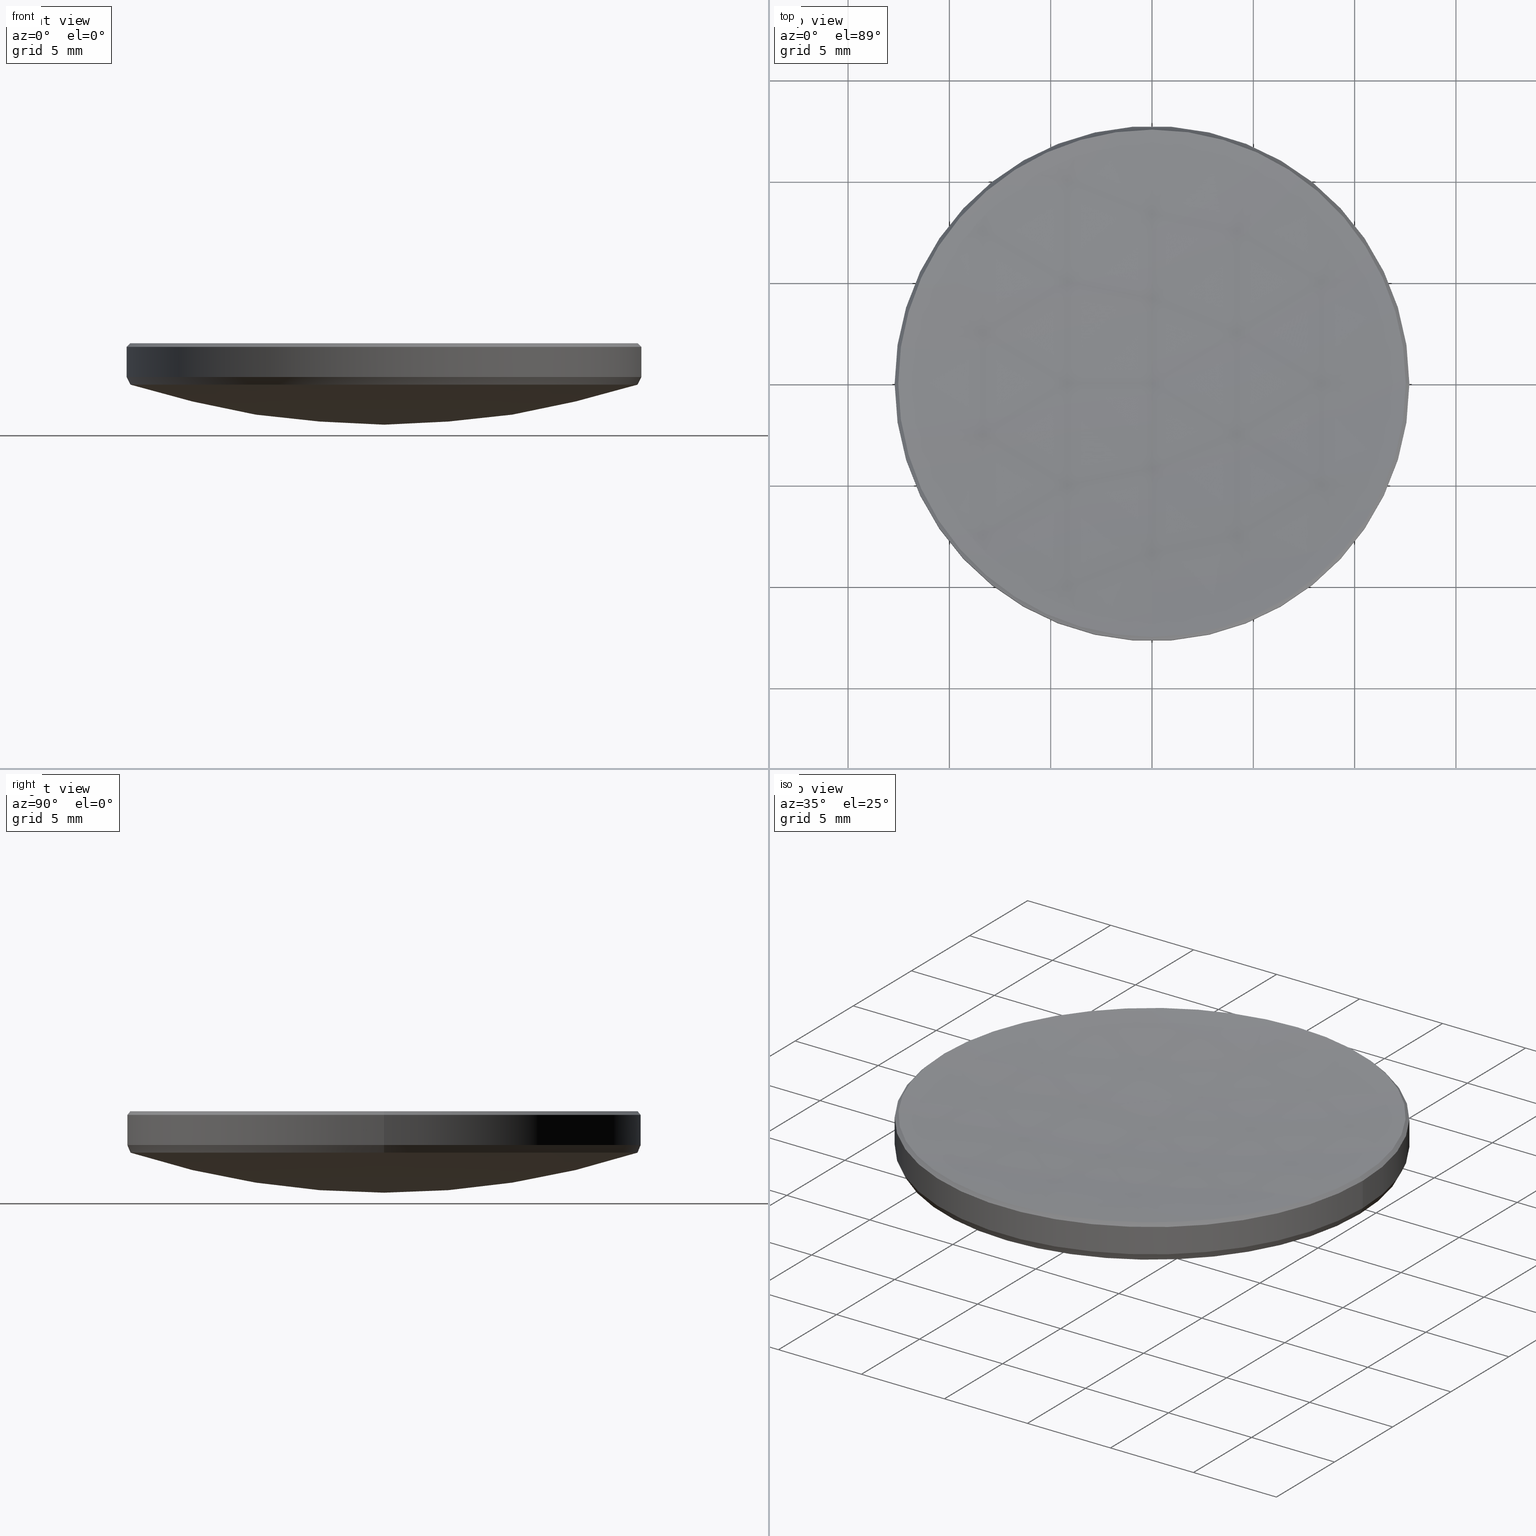
[diagram: canonical four-view strip — front | top / right | iso, engineering-drawing reading convention]
A machine part, canonical four-view strip (front | top / right | iso — engineering-drawing reading convention). The complete STEP part file that produces these views, byte-faithful:
ISO-10303-21;
HEADER;
FILE_DESCRIPTION (( 'STEP AP214' ),
    '1' );
FILE_NAME ('GLM1-025B-125.STEP',
    '2024-08-09T02:13:52',
    ( 'Windows User' ),
    ( 'P R C' ),
    'SwSTEP 2.0',
    'SolidWorks 2022',
    '' );
FILE_SCHEMA (( 'AUTOMOTIVE_DESIGN' ));
ENDSEC;

DATA;
#1 = SURFACE_STYLE_USAGE ( .BOTH. , #280 ) ;
#2 = AXIS2_PLACEMENT_3D ( 'NONE', #307, #180, #20 ) ;
#3 = CARTESIAN_POINT ( 'NONE',  ( 12.69999999999999929, 1.555301434917138433E-15, 5.799999999999999822 ) ) ;
#4 = VERTEX_POINT ( 'NONE', #3 ) ;
#5 = DIRECTION ( 'NONE',  ( 1.000000000000000000, 0.000000000000000000, 0.000000000000000000 ) ) ;
#6 = UNCERTAINTY_MEASURE_WITH_UNIT (LENGTH_MEASURE( 1.000000000000000082E-05 ), #103, 'distance_accuracy_value', 'NONE');
#7 = CARTESIAN_POINT ( 'NONE',  ( 0.000000000000000000, 0.000000000000000000, 42.56254659640620730 ) ) ;
#8 = AXIS2_PLACEMENT_3D ( 'NONE', #7, #35, #263 ) ;
#9 = DIRECTION ( 'NONE',  ( 0.000000000000000000, 1.000000000000000000, 0.000000000000000000 ) ) ;
#10 = DIRECTION ( 'NONE',  ( 1.000000000000000000, 0.000000000000000000, 0.000000000000000000 ) ) ;
#11 = CIRCLE ( 'NONE', #76, 40.59999999999999432 ) ;
#12 = CARTESIAN_POINT ( 'NONE',  ( 0.000000000000000000, 0.000000000000000000, 3.938057364562333351 ) ) ;
#13 = DIRECTION ( 'NONE',  ( 0.000000000000000000, 1.000000000000000000, 0.000000000000000000 ) ) ;
#14 = DIRECTION ( 'NONE',  ( 0.000000000000000000, 0.000000000000000000, -1.000000000000000000 ) ) ;
#15 =( NAMED_UNIT ( * ) PLANE_ANGLE_UNIT ( ) SI_UNIT ( $, .RADIAN. ) );
#16 = CIRCLE ( 'NONE', #255, 12.69999999999999929 ) ;
#17 = EDGE_CURVE ( 'NONE', #289, #114, #11, .T. ) ;
#18 = DIRECTION ( 'NONE',  ( -0.000000000000000000, -0.000000000000000000, 1.000000000000000000 ) ) ;
#19 = ORIENTED_EDGE ( 'NONE', *, *, #234, .T. ) ;
#20 = DIRECTION ( 'NONE',  ( -1.000000000000000000, 0.000000000000000000, 0.000000000000000000 ) ) ;
#21 = VERTEX_POINT ( 'NONE', #182 ) ;
#22 = PRESENTATION_STYLE_ASSIGNMENT (( #46 ) ) ;
#23 = AXIS2_PLACEMENT_3D ( 'NONE', #288, #56, #313 ) ;
#24 = ORIENTED_EDGE ( 'NONE', *, *, #250, .T. ) ;
#25 = DIRECTION ( 'NONE',  ( 0.000000000000000000, 0.000000000000000000, 1.000000000000000000 ) ) ;
#26 = ADVANCED_FACE ( 'NONE', ( #279 ), #209, .F. ) ;
#27 = PRODUCT_DEFINITION_CONTEXT ( 'detailed design', #238, 'design' ) ;
#28 =( GEOMETRIC_REPRESENTATION_CONTEXT ( 3 ) GLOBAL_UNCERTAINTY_ASSIGNED_CONTEXT ( ( #6 ) ) GLOBAL_UNIT_ASSIGNED_CONTEXT ( ( #103, #133, #158 ) ) REPRESENTATION_CONTEXT ( 'NONE', 'WORKASPACE' ) );
#29 = ORIENTED_EDGE ( 'NONE', *, *, #225, .T. ) ;
#30 = ORIENTED_EDGE ( 'NONE', *, *, #79, .F. ) ;
#31 = CARTESIAN_POINT ( 'NONE',  ( 0.000000000000000000, 0.000000000000000000, 42.56254659640620730 ) ) ;
#32 = VERTEX_POINT ( 'NONE', #134 ) ;
#33 = DIRECTION ( 'NONE',  ( 0.000000000000000000, 0.000000000000000000, -1.000000000000000000 ) ) ;
#34 = ORIENTED_EDGE ( 'NONE', *, *, #285, .T. ) ;
#35 = DIRECTION ( 'NONE',  ( -1.000000000000000000, 0.000000000000000000, 0.000000000000000000 ) ) ;
#36 = ADVANCED_FACE ( 'NONE', ( #231 ), #131, .T. ) ;
#37 = AXIS2_PLACEMENT_3D ( 'NONE', #142, #57, #9 ) ;
#38 = COLOUR_RGB ( '',1.000000000000000000, 1.000000000000000000, 1.000000000000000000 ) ;
#39 = ORIENTED_EDGE ( 'NONE', *, *, #152, .T. ) ;
#40 = DIRECTION ( 'NONE',  ( -1.000000000000000000, 0.000000000000000000, 0.000000000000000000 ) ) ;
#41 = DIRECTION ( 'NONE',  ( -0.000000000000000000, -0.000000000000000000, 1.000000000000000000 ) ) ;
#42 = CARTESIAN_POINT ( 'NONE',  ( 12.69999999999999929, 1.555301434917138433E-15, 10.00000000000000000 ) ) ;
#43 = CIRCLE ( 'NONE', #159, 106.9000000000000057 ) ;
#44 = DIRECTION ( 'NONE',  ( 1.000000000000000000, 0.000000000000000000, 0.000000000000000000 ) ) ;
#45 = CARTESIAN_POINT ( 'NONE',  ( 12.69999999999999929, 1.555301434917138433E-15, 4.313967534857077624 ) ) ;
#46 = SURFACE_STYLE_USAGE ( .BOTH. , #219 ) ;
#47 = CYLINDRICAL_SURFACE ( 'NONE', #2, 12.69999999999999929 ) ;
#48 = ADVANCED_FACE ( 'NONE', ( #188 ), #168, .T. ) ;
#49 = DIRECTION ( 'NONE',  ( -0.000000000000000000, -0.000000000000000000, 1.000000000000000000 ) ) ;
#50 = EDGE_CURVE ( 'NONE', #153, #138, #94, .T. ) ;
#51 = STYLED_ITEM ( 'NONE', ( #107 ), #61 ) ;
#52 = DIRECTION ( 'NONE',  ( 0.000000000000000000, 0.000000000000000000, -1.000000000000000000 ) ) ;
#53 = EDGE_LOOP ( 'NONE', ( #260, #294, #299, #67 ) ) ;
#54 = CARTESIAN_POINT ( 'NONE',  ( 0.000000000000000000, 0.000000000000000000, 5.978763596161118521 ) ) ;
#55 = EDGE_CURVE ( 'NONE', #114, #309, #101, .T. ) ;
#56 = DIRECTION ( 'NONE',  ( 0.000000000000000000, 0.000000000000000000, -1.000000000000000000 ) ) ;
#57 = DIRECTION ( 'NONE',  ( -1.000000000000000000, 0.000000000000000000, 0.000000000000000000 ) ) ;
#58 = PRODUCT_DEFINITION_SHAPE ( 'NONE', 'NONE',  #292 ) ;
#59 = ADVANCED_FACE ( 'NONE', ( #258 ), #80, .T. ) ;
#60 = ORIENTED_EDGE ( 'NONE', *, *, #327, .T. ) ;
#61 = ADVANCED_BREP_SHAPE_REPRESENTATION ( 'GLM1-025B-125', ( #178, #267 ), #111 ) ;
#62 = ORIENTED_EDGE ( 'NONE', *, *, #234, .F. ) ;
#63 = CYLINDRICAL_SURFACE ( 'NONE', #246, 12.69999999999999929 ) ;
#64 = VECTOR ( 'NONE', #203, 1000.000000000000000 ) ;
#65 = VECTOR ( 'NONE', #151, 1000.000000000000000 ) ;
#66 = DIRECTION ( 'NONE',  ( -1.000000000000000000, 1.224646799147353207E-16, 0.000000000000000000 ) ) ;
#67 = ORIENTED_EDGE ( 'NONE', *, *, #321, .T. ) ;
#68 = DIRECTION ( 'NONE',  ( -1.000000000000000000, 0.000000000000000000, 0.000000000000000000 ) ) ;
#69 = DIRECTION ( 'NONE',  ( -1.000000000000000000, 0.000000000000000000, 0.000000000000000000 ) ) ;
#70 = VERTEX_POINT ( 'NONE', #140 ) ;
#71 =( GEOMETRIC_REPRESENTATION_CONTEXT ( 3 ) GLOBAL_UNCERTAINTY_ASSIGNED_CONTEXT ( ( #277 ) ) GLOBAL_UNIT_ASSIGNED_CONTEXT ( ( #127, #202, #100 ) ) REPRESENTATION_CONTEXT ( 'NONE', 'WORKASPACE' ) );
#72 = FACE_OUTER_BOUND ( 'NONE', #88, .T. ) ;
#73 = EDGE_CURVE ( 'NONE', #138, #276, #211, .T. ) ;
#74 = ORIENTED_EDGE ( 'NONE', *, *, #109, .T. ) ;
#75 = EDGE_LOOP ( 'NONE', ( #220, #60, #24, #301 ) ) ;
#76 = AXIS2_PLACEMENT_3D ( 'NONE', #181, #227, #137 ) ;
#77 = MECHANICAL_DESIGN_GEOMETRIC_PRESENTATION_REPRESENTATION (  '', ( #51 ), #28 ) ;
#78 = CARTESIAN_POINT ( 'NONE',  ( 0.000000000000000000, 0.000000000000000000, 112.1429225148808655 ) ) ;
#79 = EDGE_CURVE ( 'NONE', #197, #114, #128, .T. ) ;
#80 = SPHERICAL_SURFACE ( 'NONE', #8, 40.59999999999999432 ) ;
#81 = CARTESIAN_POINT ( 'NONE',  ( 0.000000000000000000, 12.52123640383880421, 5.978763596161098093 ) ) ;
#82 = ORIENTED_EDGE ( 'NONE', *, *, #264, .T. ) ;
#83 = FACE_OUTER_BOUND ( 'NONE', #248, .T. ) ;
#84 = ORIENTED_EDGE ( 'NONE', *, *, #250, .F. ) ;
#85 = PRESENTATION_LAYER_ASSIGNMENT (  '', '', ( #316 ) ) ;
#86 = CIRCLE ( 'NONE', #305, 12.51034897911231170 ) ;
#87 = EDGE_CURVE ( 'NONE', #289, #70, #266, .T. ) ;
#88 = EDGE_LOOP ( 'NONE', ( #310, #274, #141, #193 ) ) ;
#89 = CARTESIAN_POINT ( 'NONE',  ( -12.69999999999999929, 0.000000000000000000, 5.799999999999999822 ) ) ;
#90 =( LENGTH_UNIT ( ) NAMED_UNIT ( * ) SI_UNIT ( .MILLI., .METRE. ) );
#91 = EDGE_LOOP ( 'NONE', ( #30, #74, #84, #201, #116 ) ) ;
#92 = ORIENTED_EDGE ( 'NONE', *, *, #285, .F. ) ;
#93 = CARTESIAN_POINT ( 'NONE',  ( -12.51034897911231170, 1.543688659132881617E-15, 3.938057364562333351 ) ) ;
#94 = CIRCLE ( 'NONE', #273, 12.52123640383887704 ) ;
#95 = LINE ( 'NONE', #247, #317 ) ;
#96 = ORIENTED_EDGE ( 'NONE', *, *, #73, .F. ) ;
#97 = LINE ( 'NONE', #275, #64 ) ;
#98 = CARTESIAN_POINT ( 'NONE',  ( 12.52123640383887881, 1.533409208332859768E-15, 5.978763596161118521 ) ) ;
#99 = ORIENTED_EDGE ( 'NONE', *, *, #296, .F. ) ;
#100 =( NAMED_UNIT ( * ) SI_UNIT ( $, .STERADIAN. ) SOLID_ANGLE_UNIT ( ) );
#101 = CIRCLE ( 'NONE', #328, 12.51034897911231170 ) ;
#102 = ADVANCED_FACE ( 'NONE', ( #191 ), #290, .F. ) ;
#103 =( LENGTH_UNIT ( ) NAMED_UNIT ( * ) SI_UNIT ( .MILLI., .METRE. ) );
#104 = DIRECTION ( 'NONE',  ( 1.000000000000000000, 0.000000000000000000, 0.000000000000000000 ) ) ;
#105 = MECHANICAL_DESIGN_GEOMETRIC_PRESENTATION_REPRESENTATION (  '', ( #316 ), #71 ) ;
#106 = SHAPE_DEFINITION_REPRESENTATION ( #58, #61 ) ;
#107 = PRESENTATION_STYLE_ASSIGNMENT (( #1 ) ) ;
#108 = APPLICATION_PROTOCOL_DEFINITION ( 'draft international standard', 'automotive_design', 1998, #238 ) ;
#109 = EDGE_CURVE ( 'NONE', #197, #143, #112, .T. ) ;
#110 = ORIENTED_EDGE ( 'NONE', *, *, #259, .T. ) ;
#111 =( GEOMETRIC_REPRESENTATION_CONTEXT ( 3 ) GLOBAL_UNCERTAINTY_ASSIGNED_CONTEXT ( ( #136 ) ) GLOBAL_UNIT_ASSIGNED_CONTEXT ( ( #90, #15, #123 ) ) REPRESENTATION_CONTEXT ( 'NONE', 'WORKASPACE' ) );
#112 = LINE ( 'NONE', #190, #198 ) ;
#113 = DIRECTION ( 'NONE',  ( 0.000000000000000000, 0.000000000000000000, -1.000000000000000000 ) ) ;
#114 = VERTEX_POINT ( 'NONE', #115 ) ;
#115 = CARTESIAN_POINT ( 'NONE',  ( 0.000000000000000000, 12.51034897911230992, 3.938057364562333351 ) ) ;
#116 = ORIENTED_EDGE ( 'NONE', *, *, #55, .F. ) ;
#117 = CLOSED_SHELL ( 'NONE', ( #48, #36, #102, #59, #173, #145, #206, #26, #169, #125 ) ) ;
#118 = AXIS2_PLACEMENT_3D ( 'NONE', #271, #18, #200 ) ;
#119 = DIRECTION ( 'NONE',  ( 1.000000000000000000, 0.000000000000000000, 0.000000000000000000 ) ) ;
#120 = ORIENTED_EDGE ( 'NONE', *, *, #327, .F. ) ;
#121 = EDGE_CURVE ( 'NONE', #309, #70, #139, .T. ) ;
#122 = AXIS2_PLACEMENT_3D ( 'NONE', #322, #199, #297 ) ;
#123 =( NAMED_UNIT ( * ) SI_UNIT ( $, .STERADIAN. ) SOLID_ANGLE_UNIT ( ) );
#124 = DIRECTION ( 'NONE',  ( -0.000000000000000000, -0.000000000000000000, 1.000000000000000000 ) ) ;
#125 = ADVANCED_FACE ( 'NONE', ( #83 ), #324, .T. ) ;
#126 = ORIENTED_EDGE ( 'NONE', *, *, #17, .F. ) ;
#127 =( LENGTH_UNIT ( ) NAMED_UNIT ( * ) SI_UNIT ( .MILLI., .METRE. ) );
#128 = CIRCLE ( 'NONE', #185, 12.51034897911231170 ) ;
#129 = DIRECTION ( 'NONE',  ( 1.000000000000000000, 0.000000000000000000, 0.000000000000000000 ) ) ;
#130 = ORIENTED_EDGE ( 'NONE', *, *, #237, .T. ) ;
#131 = CONICAL_SURFACE ( 'NONE', #251, 12.69999999999999929, 0.4672503280471582698 ) ;
#132 = VECTOR ( 'NONE', #319, 1000.000000000000000 ) ;
#133 =( NAMED_UNIT ( * ) PLANE_ANGLE_UNIT ( ) SI_UNIT ( $, .RADIAN. ) );
#134 = CARTESIAN_POINT ( 'NONE',  ( 12.52123640383887704, 1.544355321624999001E-15, 5.978763596161104310 ) ) ;
#135 = CARTESIAN_POINT ( 'NONE',  ( 0.000000000000000000, 0.000000000000000000, 0.000000000000000000 ) ) ;
#136 = UNCERTAINTY_MEASURE_WITH_UNIT (LENGTH_MEASURE( 1.000000000000000082E-05 ), #90, 'distance_accuracy_value', 'NONE');
#137 = DIRECTION ( 'NONE',  ( 0.000000000000000000, 0.000000000000000000, -1.000000000000000000 ) ) ;
#138 = VERTEX_POINT ( 'NONE', #261 ) ;
#139 = CIRCLE ( 'NONE', #284, 12.51034897911231170 ) ;
#140 = CARTESIAN_POINT ( 'NONE',  ( -1.532075883348624801E-15, -12.51034897911230992, 3.938057364562333351 ) ) ;
#141 = ORIENTED_EDGE ( 'NONE', *, *, #55, .T. ) ;
#142 = CARTESIAN_POINT ( 'NONE',  ( 0.000000000000000000, 0.000000000000000000, 112.1429225148808655 ) ) ;
#143 = VERTEX_POINT ( 'NONE', #241 ) ;
#144 = AXIS2_PLACEMENT_3D ( 'NONE', #323, #300, #69 ) ;
#145 = ADVANCED_FACE ( 'NONE', ( #295 ), #63, .T. ) ;
#146 = DIRECTION ( 'NONE',  ( 0.000000000000000000, 0.000000000000000000, -1.000000000000000000 ) ) ;
#147 = SURFACE_STYLE_FILL_AREA ( #249 ) ;
#148 = ORIENTED_EDGE ( 'NONE', *, *, #321, .F. ) ;
#149 = CIRCLE ( 'NONE', #122, 12.69999999999999929 ) ;
#150 = DIRECTION ( 'NONE',  ( 1.000000000000000000, 0.000000000000000000, 0.000000000000000000 ) ) ;
#151 = DIRECTION ( 'NONE',  ( -0.000000000000000000, -0.000000000000000000, -1.000000000000000000 ) ) ;
#152 = EDGE_CURVE ( 'NONE', #4, #276, #156, .T. ) ;
#153 = VERTEX_POINT ( 'NONE', #81 ) ;
#154 = FILL_AREA_STYLE_COLOUR ( '', #218 ) ;
#155 = CARTESIAN_POINT ( 'NONE',  ( 0.000000000000000000, 0.000000000000000000, 3.938057364562333351 ) ) ;
#156 = CIRCLE ( 'NONE', #23, 12.69999999999999929 ) ;
#157 = DIRECTION ( 'NONE',  ( 0.000000000000000000, 0.000000000000000000, -1.000000000000000000 ) ) ;
#158 =( NAMED_UNIT ( * ) SI_UNIT ( $, .STERADIAN. ) SOLID_ANGLE_UNIT ( ) );
#159 = AXIS2_PLACEMENT_3D ( 'NONE', #216, #66, #179 ) ;
#160 = CIRCLE ( 'NONE', #311, 106.9000000000000057 ) ;
#161 = EDGE_CURVE ( 'NONE', #276, #143, #97, .T. ) ;
#162 = ORIENTED_EDGE ( 'NONE', *, *, #264, .F. ) ;
#163 = DIRECTION ( 'NONE',  ( -1.000000000000000000, 1.224646799147353207E-16, 0.000000000000000000 ) ) ;
#164 = VERTEX_POINT ( 'NONE', #306 ) ;
#165 = DIRECTION ( 'NONE',  ( -1.000000000000000000, 0.000000000000000000, 0.000000000000000000 ) ) ;
#166 = DIRECTION ( 'NONE',  ( 1.000000000000000000, 0.000000000000000000, 0.000000000000000000 ) ) ;
#167 = ORIENTED_EDGE ( 'NONE', *, *, #73, .T. ) ;
#168 = CONICAL_SURFACE ( 'NONE', #239, 12.52123640383887881, 0.7853981633974531640 ) ;
#169 = ADVANCED_FACE ( 'NONE', ( #205 ), #291, .T. ) ;
#170 = CARTESIAN_POINT ( 'NONE',  ( 0.000000000000000000, 0.000000000000000000, 10.00000000000000000 ) ) ;
#171 = CARTESIAN_POINT ( 'NONE',  ( 0.000000000000000000, 0.000000000000000000, 4.313967534857077624 ) ) ;
#172 = FACE_OUTER_BOUND ( 'NONE', #75, .T. ) ;
#173 = ADVANCED_FACE ( 'NONE', ( #172 ), #47, .T. ) ;
#174 = CARTESIAN_POINT ( 'NONE',  ( 0.000000000000000000, 2.486033002269126979E-15, 1.962546596406211652 ) ) ;
#175 = EDGE_LOOP ( 'NONE', ( #126, #210, #34, #177 ) ) ;
#176 = APPLICATION_CONTEXT ( 'automotive_design' ) ;
#177 = ORIENTED_EDGE ( 'NONE', *, *, #79, .T. ) ;
#178 = MANIFOLD_SOLID_BREP ( '����1', #117 ) ;
#179 = DIRECTION ( 'NONE',  ( -1.224646799147353207E-16, -1.000000000000000000, 0.000000000000000000 ) ) ;
#180 = DIRECTION ( 'NONE',  ( -0.000000000000000000, -0.000000000000000000, -1.000000000000000000 ) ) ;
#181 = CARTESIAN_POINT ( 'NONE',  ( 0.000000000000000000, 0.000000000000000000, 42.56254659640620730 ) ) ;
#182 = CARTESIAN_POINT ( 'NONE',  ( -1.533409208332850696E-15, -12.52123640383880421, 5.978763596161098093 ) ) ;
#183 = FILL_AREA_STYLE_COLOUR ( '', #38 ) ;
#184 = DIRECTION ( 'NONE',  ( 0.000000000000000000, 1.000000000000000000, 0.000000000000000000 ) ) ;
#185 = AXIS2_PLACEMENT_3D ( 'NONE', #236, #33, #10 ) ;
#186 = CIRCLE ( 'NONE', #256, 12.52123640383887704 ) ;
#187 = ORIENTED_EDGE ( 'NONE', *, *, #302, .T. ) ;
#188 = FACE_OUTER_BOUND ( 'NONE', #268, .T. ) ;
#189 = ORIENTED_EDGE ( 'NONE', *, *, #50, .F. ) ;
#190 = CARTESIAN_POINT ( 'NONE',  ( -12.69999999999999929, 1.555301434917138433E-15, 4.313967534857077624 ) ) ;
#191 = FACE_OUTER_BOUND ( 'NONE', #245, .T. ) ;
#192 = AXIS2_PLACEMENT_3D ( 'NONE', #325, #124, #150 ) ;
#193 = ORIENTED_EDGE ( 'NONE', *, *, #121, .T. ) ;
#194 = VERTEX_POINT ( 'NONE', #45 ) ;
#195 = DIRECTION ( 'NONE',  ( 1.000000000000000000, 0.000000000000000000, 0.000000000000000000 ) ) ;
#196 = EDGE_LOOP ( 'NONE', ( #120, #39, #232, #19 ) ) ;
#197 = VERTEX_POINT ( 'NONE', #93 ) ;
#198 = VECTOR ( 'NONE', #287, 1000.000000000000114 ) ;
#199 = DIRECTION ( 'NONE',  ( 0.000000000000000000, 0.000000000000000000, -1.000000000000000000 ) ) ;
#200 = DIRECTION ( 'NONE',  ( 1.000000000000000000, 0.000000000000000000, 0.000000000000000000 ) ) ;
#201 = ORIENTED_EDGE ( 'NONE', *, *, #259, .F. ) ;
#202 =( NAMED_UNIT ( * ) PLANE_ANGLE_UNIT ( ) SI_UNIT ( $, .RADIAN. ) );
#203 = DIRECTION ( 'NONE',  ( -0.000000000000000000, -0.000000000000000000, -1.000000000000000000 ) ) ;
#204 = PRODUCT_DEFINITION_FORMATION_WITH_SPECIFIED_SOURCE ( '�κ�', '', #265, .NOT_KNOWN. ) ;
#205 = FACE_OUTER_BOUND ( 'NONE', #304, .T. ) ;
#206 = ADVANCED_FACE ( 'NONE', ( #72 ), #326, .T. ) ;
#207 = PRODUCT_CONTEXT ( 'NONE', #176, 'mechanical' ) ;
#208 = DIRECTION ( 'NONE',  ( -1.000000000000000000, 0.000000000000000000, 0.000000000000000000 ) ) ;
#209 = SPHERICAL_SURFACE ( 'NONE', #229, 106.9000000000000057 ) ;
#210 = ORIENTED_EDGE ( 'NONE', *, *, #87, .T. ) ;
#211 = LINE ( 'NONE', #312, #213 ) ;
#212 = ORIENTED_EDGE ( 'NONE', *, *, #121, .F. ) ;
#213 = VECTOR ( 'NONE', #233, 1000.000000000000000 ) ;
#214 = AXIS2_PLACEMENT_3D ( 'NONE', #298, #270, #44 ) ;
#215 = DIRECTION ( 'NONE',  ( -0.000000000000000000, -0.000000000000000000, 1.000000000000000000 ) ) ;
#216 = CARTESIAN_POINT ( 'NONE',  ( 0.000000000000000000, 0.000000000000000000, 112.1429225148808655 ) ) ;
#217 = LINE ( 'NONE', #98, #132 ) ;
#218 = COLOUR_RGB ( '',1.000000000000000000, 1.000000000000000000, 1.000000000000000000 ) ;
#219 = SURFACE_SIDE_STYLE ('',( #147 ) ) ;
#220 = ORIENTED_EDGE ( 'NONE', *, *, #228, .T. ) ;
#221 = CARTESIAN_POINT ( 'NONE',  ( 0.000000000000000000, 0.000000000000000000, 5.978763596161104310 ) ) ;
#222 = ORIENTED_EDGE ( 'NONE', *, *, #109, .F. ) ;
#223 = CARTESIAN_POINT ( 'NONE',  ( 0.000000000000000000, 0.000000000000000000, 42.56254659640620730 ) ) ;
#224 = CIRCLE ( 'NONE', #214, 12.52123640383887704 ) ;
#225 = EDGE_CURVE ( 'NONE', #164, #21, #43, .T. ) ;
#226 = FILL_AREA_STYLE ('',( #183 ) ) ;
#227 = DIRECTION ( 'NONE',  ( 1.000000000000000000, -0.000000000000000000, 0.000000000000000000 ) ) ;
#228 = EDGE_CURVE ( 'NONE', #276, #4, #149, .T. ) ;
#229 = AXIS2_PLACEMENT_3D ( 'NONE', #78, #252, #184 ) ;
#230 = APPLICATION_PROTOCOL_DEFINITION ( 'draft international standard', 'automotive_design', 1998, #176 ) ;
#231 = FACE_OUTER_BOUND ( 'NONE', #91, .T. ) ;
#232 = ORIENTED_EDGE ( 'NONE', *, *, #161, .T. ) ;
#233 = DIRECTION ( 'NONE',  ( -0.7071067811865510144, 0.000000000000000000, -0.7071067811865441310 ) ) ;
#234 = EDGE_CURVE ( 'NONE', #143, #194, #16, .T. ) ;
#235 = CARTESIAN_POINT ( 'NONE',  ( 0.000000000000000000, 0.000000000000000000, 3.938057364562333351 ) ) ;
#236 = CARTESIAN_POINT ( 'NONE',  ( 0.000000000000000000, 0.000000000000000000, 3.938057364562333351 ) ) ;
#237 = EDGE_CURVE ( 'NONE', #21, #32, #329, .T. ) ;
#238 = APPLICATION_CONTEXT ( 'automotive_design' ) ;
#239 = AXIS2_PLACEMENT_3D ( 'NONE', #283, #286, #208 ) ;
#240 = CIRCLE ( 'NONE', #144, 12.69999999999999929 ) ;
#241 = CARTESIAN_POINT ( 'NONE',  ( -12.69999999999999929, 0.000000000000000000, 4.313967534857077624 ) ) ;
#242 = LINE ( 'NONE', #42, #65 ) ;
#243 = ORIENTED_EDGE ( 'NONE', *, *, #237, .F. ) ;
#244 = DIRECTION ( 'NONE',  ( 0.4504330560855231425, 0.000000000000000000, 0.8928102049066508616 ) ) ;
#245 = EDGE_LOOP ( 'NONE', ( #99, #29, #130, #187 ) ) ;
#246 = AXIS2_PLACEMENT_3D ( 'NONE', #170, #269, #40 ) ;
#247 = CARTESIAN_POINT ( 'NONE',  ( 12.69999999999999929, 0.000000000000000000, 4.313967534857077624 ) ) ;
#248 = EDGE_LOOP ( 'NONE', ( #162, #243, #148, #167, #318 ) ) ;
#249 = FILL_AREA_STYLE ('',( #154 ) ) ;
#250 = EDGE_CURVE ( 'NONE', #194, #143, #240, .T. ) ;
#251 = AXIS2_PLACEMENT_3D ( 'NONE', #282, #332, #104 ) ;
#252 = DIRECTION ( 'NONE',  ( -1.000000000000000000, 0.000000000000000000, 0.000000000000000000 ) ) ;
#253 = PRESENTATION_LAYER_ASSIGNMENT (  '', '', ( #51 ) ) ;
#254 = SURFACE_STYLE_FILL_AREA ( #226 ) ;
#255 = AXIS2_PLACEMENT_3D ( 'NONE', #171, #41, #68 ) ;
#256 = AXIS2_PLACEMENT_3D ( 'NONE', #221, #215, #293 ) ;
#257 = DIRECTION ( 'NONE',  ( 1.000000000000000000, 0.000000000000000000, 0.000000000000000000 ) ) ;
#258 = FACE_OUTER_BOUND ( 'NONE', #175, .T. ) ;
#259 = EDGE_CURVE ( 'NONE', #309, #194, #95, .T. ) ;
#260 = ORIENTED_EDGE ( 'NONE', *, *, #225, .F. ) ;
#261 = CARTESIAN_POINT ( 'NONE',  ( -12.52123640383887704, 0.000000000000000000, 5.978763596161104310 ) ) ;
#262 = AXIS2_PLACEMENT_3D ( 'NONE', #223, #330, #13 ) ;
#263 = DIRECTION ( 'NONE',  ( 0.000000000000000000, 1.000000000000000000, 0.000000000000000000 ) ) ;
#264 = EDGE_CURVE ( 'NONE', #32, #4, #217, .T. ) ;
#265 = PRODUCT ( 'GLM1-025B-125', 'GLM1-025B-125', '', ( #207 ) ) ;
#266 = CIRCLE ( 'NONE', #278, 40.59999999999999432 ) ;
#267 = AXIS2_PLACEMENT_3D ( 'NONE', #135, #25, #5 ) ;
#268 = EDGE_LOOP ( 'NONE', ( #308, #82, #315, #96, #189 ) ) ;
#269 = DIRECTION ( 'NONE',  ( -0.000000000000000000, -0.000000000000000000, -1.000000000000000000 ) ) ;
#270 = DIRECTION ( 'NONE',  ( -0.000000000000000000, -0.000000000000000000, 1.000000000000000000 ) ) ;
#271 = CARTESIAN_POINT ( 'NONE',  ( 0.000000000000000000, 0.000000000000000000, 5.978763596161104310 ) ) ;
#272 = CARTESIAN_POINT ( 'NONE',  ( 0.000000000000000000, 0.000000000000000000, 112.1429225148808655 ) ) ;
#273 = AXIS2_PLACEMENT_3D ( 'NONE', #281, #49, #257 ) ;
#274 = ORIENTED_EDGE ( 'NONE', *, *, #17, .T. ) ;
#275 = CARTESIAN_POINT ( 'NONE',  ( -12.69999999999999929, 0.000000000000000000, 10.00000000000000000 ) ) ;
#276 = VERTEX_POINT ( 'NONE', #89 ) ;
#277 = UNCERTAINTY_MEASURE_WITH_UNIT (LENGTH_MEASURE( 1.000000000000000082E-05 ), #127, 'distance_accuracy_value', 'NONE');
#278 = AXIS2_PLACEMENT_3D ( 'NONE', #31, #163, #314 ) ;
#279 = FACE_OUTER_BOUND ( 'NONE', #53, .T. ) ;
#280 = SURFACE_SIDE_STYLE ('',( #254 ) ) ;
#281 = CARTESIAN_POINT ( 'NONE',  ( 0.000000000000000000, 0.000000000000000000, 5.978763596161104310 ) ) ;
#282 = CARTESIAN_POINT ( 'NONE',  ( 0.000000000000000000, 0.000000000000000000, 4.313967534857077624 ) ) ;
#283 = CARTESIAN_POINT ( 'NONE',  ( 0.000000000000000000, 0.000000000000000000, 5.978763596161118521 ) ) ;
#284 = AXIS2_PLACEMENT_3D ( 'NONE', #235, #113, #166 ) ;
#285 = EDGE_CURVE ( 'NONE', #70, #197, #86, .T. ) ;
#286 = DIRECTION ( 'NONE',  ( 0.000000000000000000, 0.000000000000000000, -1.000000000000000000 ) ) ;
#287 = DIRECTION ( 'NONE',  ( -0.4504330560855231425, 5.516214003652961775E-17, 0.8928102049066508616 ) ) ;
#288 = CARTESIAN_POINT ( 'NONE',  ( 0.000000000000000000, 0.000000000000000000, 5.799999999999999822 ) ) ;
#289 = VERTEX_POINT ( 'NONE', #174 ) ;
#290 = SPHERICAL_SURFACE ( 'NONE', #37, 106.9000000000000057 ) ;
#291 = CONICAL_SURFACE ( 'NONE', #192, 12.69999999999999929, 0.4672503280471582698 ) ;
#292 = PRODUCT_DEFINITION ( 'δ֪', '', #204, #27 ) ;
#293 = DIRECTION ( 'NONE',  ( 1.000000000000000000, 0.000000000000000000, 0.000000000000000000 ) ) ;
#294 = ORIENTED_EDGE ( 'NONE', *, *, #296, .T. ) ;
#295 = FACE_OUTER_BOUND ( 'NONE', #196, .T. ) ;
#296 = EDGE_CURVE ( 'NONE', #164, #153, #160, .T. ) ;
#297 = DIRECTION ( 'NONE',  ( 1.000000000000000000, 0.000000000000000000, 0.000000000000000000 ) ) ;
#298 = CARTESIAN_POINT ( 'NONE',  ( 0.000000000000000000, 0.000000000000000000, 5.978763596161104310 ) ) ;
#299 = ORIENTED_EDGE ( 'NONE', *, *, #50, .T. ) ;
#300 = DIRECTION ( 'NONE',  ( -0.000000000000000000, -0.000000000000000000, 1.000000000000000000 ) ) ;
#301 = ORIENTED_EDGE ( 'NONE', *, *, #161, .F. ) ;
#302 = EDGE_CURVE ( 'NONE', #32, #153, #224, .T. ) ;
#303 = AXIS2_PLACEMENT_3D ( 'NONE', #54, #52, #165 ) ;
#304 = EDGE_LOOP ( 'NONE', ( #222, #92, #212, #110, #62 ) ) ;
#305 = AXIS2_PLACEMENT_3D ( 'NONE', #12, #14, #119 ) ;
#306 = CARTESIAN_POINT ( 'NONE',  ( 0.000000000000000000, 6.545737141442603608E-15, 5.242922514880857143 ) ) ;
#307 = CARTESIAN_POINT ( 'NONE',  ( 0.000000000000000000, 0.000000000000000000, 10.00000000000000000 ) ) ;
#308 = ORIENTED_EDGE ( 'NONE', *, *, #302, .F. ) ;
#309 = VERTEX_POINT ( 'NONE', #320 ) ;
#310 = ORIENTED_EDGE ( 'NONE', *, *, #87, .F. ) ;
#311 = AXIS2_PLACEMENT_3D ( 'NONE', #272, #195, #146 ) ;
#312 = CARTESIAN_POINT ( 'NONE',  ( -12.52123640383887881, 0.000000000000000000, 5.978763596161118521 ) ) ;
#313 = DIRECTION ( 'NONE',  ( 1.000000000000000000, 0.000000000000000000, 0.000000000000000000 ) ) ;
#314 = DIRECTION ( 'NONE',  ( -1.224646799147353454E-16, -1.000000000000000000, 0.000000000000000000 ) ) ;
#315 = ORIENTED_EDGE ( 'NONE', *, *, #228, .F. ) ;
#316 = STYLED_ITEM ( 'NONE', ( #22 ), #178 ) ;
#317 = VECTOR ( 'NONE', #244, 1000.000000000000114 ) ;
#318 = ORIENTED_EDGE ( 'NONE', *, *, #152, .F. ) ;
#319 = DIRECTION ( 'NONE',  ( 0.7071067811865510144, 8.659560562354975999E-17, -0.7071067811865441310 ) ) ;
#320 = CARTESIAN_POINT ( 'NONE',  ( 12.51034897911231170, 0.000000000000000000, 3.938057364562333351 ) ) ;
#321 = EDGE_CURVE ( 'NONE', #138, #21, #186, .T. ) ;
#322 = CARTESIAN_POINT ( 'NONE',  ( 0.000000000000000000, 0.000000000000000000, 5.799999999999999822 ) ) ;
#323 = CARTESIAN_POINT ( 'NONE',  ( 0.000000000000000000, 0.000000000000000000, 4.313967534857077624 ) ) ;
#324 = CONICAL_SURFACE ( 'NONE', #303, 12.52123640383887881, 0.7853981633974531640 ) ;
#325 = CARTESIAN_POINT ( 'NONE',  ( 0.000000000000000000, 0.000000000000000000, 4.313967534857077624 ) ) ;
#326 = SPHERICAL_SURFACE ( 'NONE', #262, 40.59999999999999432 ) ;
#327 = EDGE_CURVE ( 'NONE', #4, #194, #242, .T. ) ;
#328 = AXIS2_PLACEMENT_3D ( 'NONE', #155, #157, #129 ) ;
#329 = CIRCLE ( 'NONE', #118, 12.52123640383887704 ) ;
#330 = DIRECTION ( 'NONE',  ( -1.000000000000000000, 0.000000000000000000, 0.000000000000000000 ) ) ;
#331 = PRODUCT_RELATED_PRODUCT_CATEGORY ( 'part', '', ( #265 ) ) ;
#332 = DIRECTION ( 'NONE',  ( -0.000000000000000000, -0.000000000000000000, 1.000000000000000000 ) ) ;
ENDSEC;
END-ISO-10303-21;
